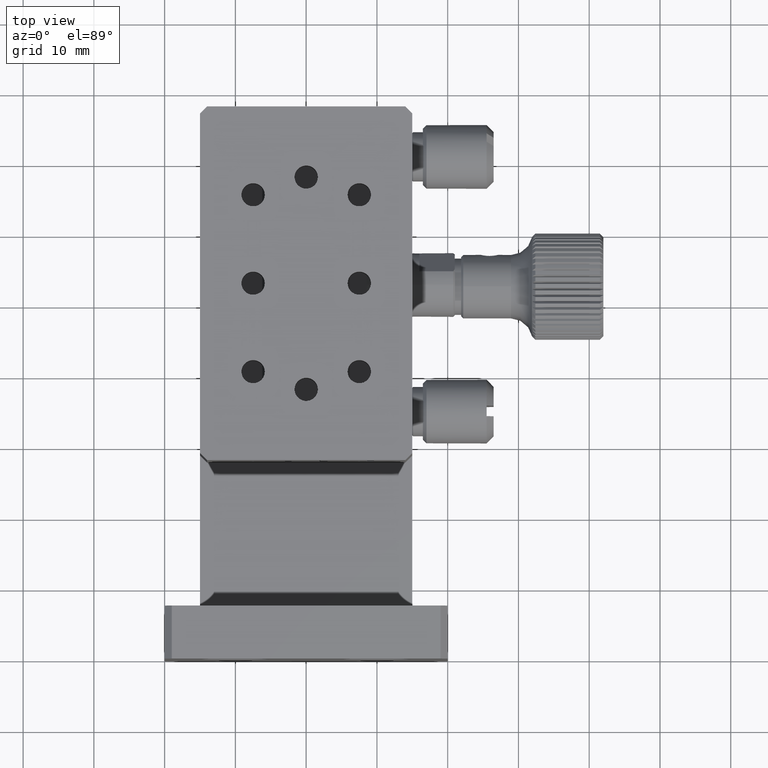
[diagram: clean part render]
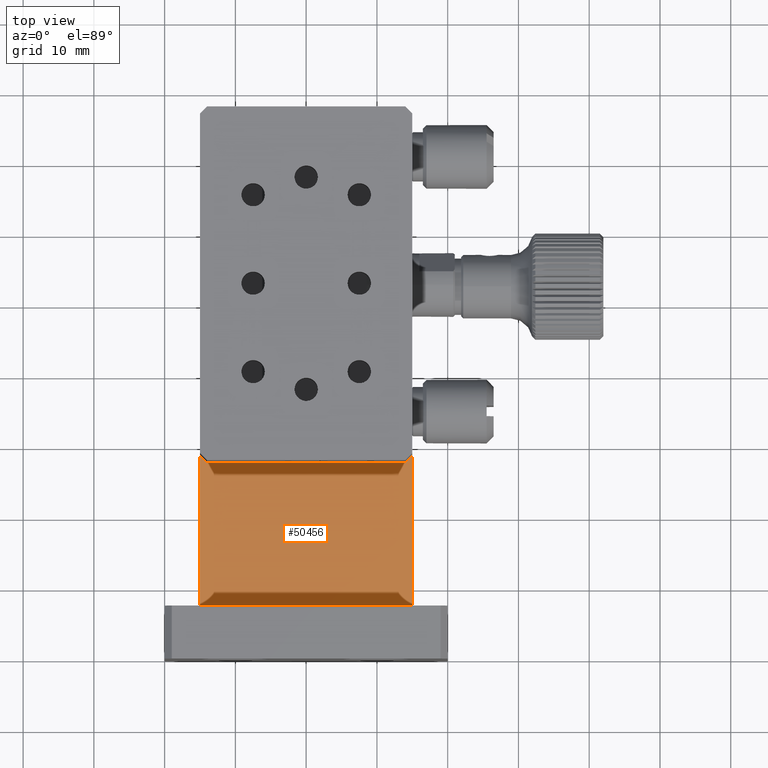
[diagram: same view with one face highlighted and labeled with its STEP entity id]
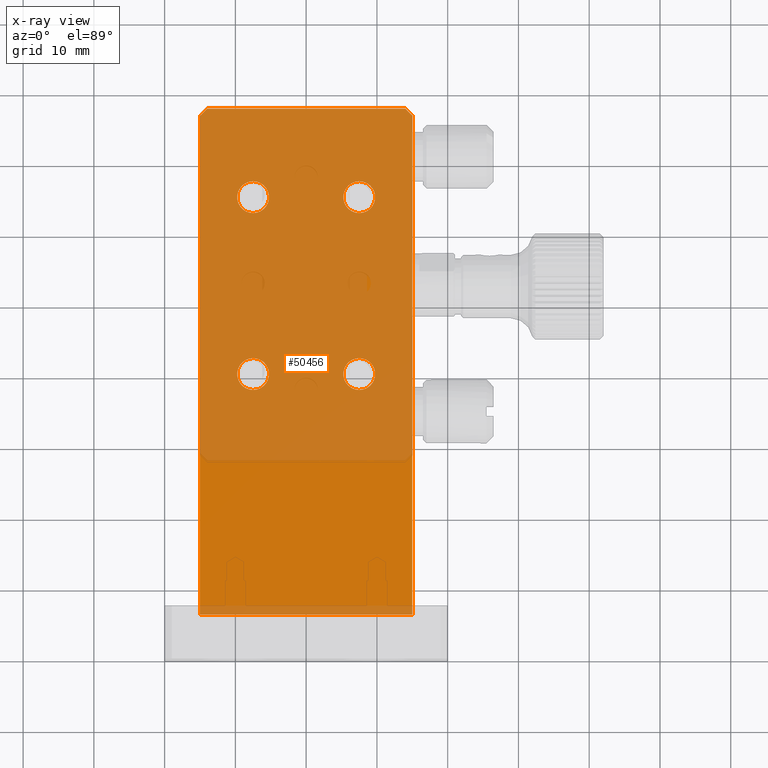
[diagram: x-ray of the same camera — body ghosted, the highlighted face saturated]
A machine part, top view. The second image highlights one B-rep face of the part: STEP entity #50456.
The next image is the same camera in x-ray: the body ghosted, the highlighted face saturated — about 70% of this face is hidden behind the body in this view.
In plain terms, the highlighted planar face has unit normal (0, 0, -1).
Its self-contained STEP definition (entity closure, byte-faithful):
#2829 = CARTESIAN_POINT ( 'NONE',  ( 7.500000000000953015, 40.50000000000097344, -12.50000000000000355 ) ) ;
#2847 = CARTESIAN_POINT ( 'NONE',  ( 7.500000000000714984, 65.50000000000099476, -12.50000000000000000 ) ) ;
#3084 = CIRCLE ( 'NONE', #41317, 2.250000000000001776 ) ;
#3786 = ORIENTED_EDGE ( 'NONE', *, *, #116133, .F. ) ;
#4757 = DIRECTION ( 'NONE',  ( 0.000000000000000000, 1.000000000000000000, 9.842402700577627086E-17 ) ) ;
#5339 = FACE_BOUND ( 'NONE', #45334, .T. ) ;
#5783 = VECTOR ( 'NONE', #32369, 1000.000000000000000 ) ;
#8974 = VERTEX_POINT ( 'NONE', #109256 ) ;
#11827 = CARTESIAN_POINT ( 'NONE',  ( 20.00000000000000000, 6.500000000000005329, -12.50000000000000711 ) ) ;
#12340 = EDGE_CURVE ( 'NONE', #71773, #35782, #80137, .T. ) ;
#15838 = CARTESIAN_POINT ( 'NONE',  ( -7.499999999998784972, 65.50000000000113687, -12.50000000000000000 ) ) ;
#16420 = DIRECTION ( 'NONE',  ( -0.000000000000000000, -8.896017825522084408E-17, 1.000000000000000000 ) ) ;
#16988 = EDGE_LOOP ( 'NONE', ( #26692 ) ) ;
#17219 = VERTEX_POINT ( 'NONE', #53692 ) ;
#17667 = CARTESIAN_POINT ( 'NONE',  ( 15.00000000000000178, 6.500000000000004441, -12.50000000000000711 ) ) ;
#18918 = ORIENTED_EDGE ( 'NONE', *, *, #52790, .F. ) ;
#19783 = ORIENTED_EDGE ( 'NONE', *, *, #93870, .F. ) ;
#19914 = CARTESIAN_POINT ( 'NONE',  ( 20.00000000000000000, 78.00000000000001421, -12.50000000000000000 ) ) ;
#21343 = DIRECTION ( 'NONE',  ( -0.7071067811865474617, -0.7071067811865474617, -0.000000000000000000 ) ) ;
#22102 = PLANE ( 'NONE',  #68631 ) ;
#22710 = DIRECTION ( 'NONE',  ( 0.000000000000000000, 9.842402700577627086E-17, -1.000000000000000000 ) ) ;
#22741 = CIRCLE ( 'NONE', #62848, 2.250000000000001776 ) ;
#23105 = CARTESIAN_POINT ( 'NONE',  ( 7.500000000000953015, 42.75000000000097344, -12.50000000000000355 ) ) ;
#26692 = ORIENTED_EDGE ( 'NONE', *, *, #69063, .F. ) ;
#28604 = DIRECTION ( 'NONE',  ( 0.000000000000000000, 1.000000000000000000, 0.000000000000000000 ) ) ;
#29657 = DIRECTION ( 'NONE',  ( -0.000000000000000000, -1.000000000000000000, -9.842402700577627086E-17 ) ) ;
#29749 = LINE ( 'NONE', #11827, #94692 ) ;
#32369 = DIRECTION ( 'NONE',  ( 0.000000000000000000, 1.000000000000000000, 9.842402700577627086E-17 ) ) ;
#32515 = AXIS2_PLACEMENT_3D ( 'NONE', #90969, #79651, #62873 ) ;
#35782 = VERTEX_POINT ( 'NONE', #63601 ) ;
#36332 = EDGE_LOOP ( 'NONE', ( #49015, #3786, #94662, #94954, #37376, #18918 ) ) ;
#36882 = EDGE_LOOP ( 'NONE', ( #93206 ) ) ;
#37376 = ORIENTED_EDGE ( 'NONE', *, *, #12340, .T. ) ;
#37486 = VERTEX_POINT ( 'NONE', #74560 ) ;
#39458 = FACE_BOUND ( 'NONE', #36882, .T. ) ;
#39938 = EDGE_LOOP ( 'NONE', ( #19783 ) ) ;
#41317 = AXIS2_PLACEMENT_3D ( 'NONE', #15838, #16420, #61276 ) ;
#41697 = DIRECTION ( 'NONE',  ( -1.000000000000000000, 0.000000000000000000, -0.000000000000000000 ) ) ;
#45334 = EDGE_LOOP ( 'NONE', ( #51891 ) ) ;
#45897 = CIRCLE ( 'NONE', #32515, 2.249999999999995115 ) ;
#46482 = LINE ( 'NONE', #76366, #64212 ) ;
#47944 = CARTESIAN_POINT ( 'NONE',  ( -14.99999999999998934, 78.00000000000001421, -12.50000000000000000 ) ) ;
#49015 = ORIENTED_EDGE ( 'NONE', *, *, #70013, .T. ) ;
#50456 = ADVANCED_FACE ( 'NONE', ( #112970, #103994, #39458, #69336, #5339 ), #22102, .F. ) ;
#51891 = ORIENTED_EDGE ( 'NONE', *, *, #66130, .F. ) ;
#52687 = AXIS2_PLACEMENT_3D ( 'NONE', #2847, #75803, #28604 ) ;
#52790 = EDGE_CURVE ( 'NONE', #110190, #35782, #89951, .T. ) ;
#53221 = CARTESIAN_POINT ( 'NONE',  ( 14.99999999999999645, 76.99999999999998579, -12.50000000000000355 ) ) ;
#53576 = CARTESIAN_POINT ( 'NONE',  ( -14.99999999999998579, 6.500000000000003553, -12.50000000000000711 ) ) ;
#53692 = CARTESIAN_POINT ( 'NONE',  ( 7.500000000000714984, 67.75000000000099476, -12.50000000000000000 ) ) ;
#53818 = EDGE_CURVE ( 'NONE', #107496, #107496, #45897, .T. ) ;
#54826 = VECTOR ( 'NONE', #89711, 1000.000000000000114 ) ;
#60739 = VERTEX_POINT ( 'NONE', #23105 ) ;
#61276 = DIRECTION ( 'NONE',  ( 0.000000000000000000, 1.000000000000000000, 0.000000000000000000 ) ) ;
#62233 = CIRCLE ( 'NONE', #52687, 2.250000000000001776 ) ;
#62848 = AXIS2_PLACEMENT_3D ( 'NONE', #2829, #68006, #76398 ) ;
#62873 = DIRECTION ( 'NONE',  ( 0.000000000000000000, 1.000000000000000000, 0.000000000000000000 ) ) ;
#63601 = CARTESIAN_POINT ( 'NONE',  ( 13.99999999999996803, 78.00000000000001421, -12.50000000000000000 ) ) ;
#64212 = VECTOR ( 'NONE', #21343, 1000.000000000000114 ) ;
#66130 = EDGE_CURVE ( 'NONE', #17219, #17219, #62233, .T. ) ;
#66523 = EDGE_CURVE ( 'NONE', #108190, #70850, #29749, .T. ) ;
#68006 = DIRECTION ( 'NONE',  ( -0.000000000000000000, -8.896017825522084408E-17, 1.000000000000000000 ) ) ;
#68631 = AXIS2_PLACEMENT_3D ( 'NONE', #95057, #22710, #4757 ) ;
#69063 = EDGE_CURVE ( 'NONE', #37486, #37486, #3084, .T. ) ;
#69336 = FACE_BOUND ( 'NONE', #16988, .T. ) ;
#70013 = EDGE_CURVE ( 'NONE', #110190, #8974, #46482, .T. ) ;
#70850 = VERTEX_POINT ( 'NONE', #53576 ) ;
#71773 = VERTEX_POINT ( 'NONE', #97102 ) ;
#74560 = CARTESIAN_POINT ( 'NONE',  ( -7.499999999998784972, 67.75000000000113687, -12.50000000000000000 ) ) ;
#75120 = LINE ( 'NONE', #111548, #118055 ) ;
#75803 = DIRECTION ( 'NONE',  ( -0.000000000000000000, -8.896017825522084408E-17, 1.000000000000000000 ) ) ;
#76366 = CARTESIAN_POINT ( 'NONE',  ( -13.99999999999999467, 78.00000000000001421, -12.49999999999999645 ) ) ;
#76398 = DIRECTION ( 'NONE',  ( 0.000000000000000000, 1.000000000000000000, 0.000000000000000000 ) ) ;
#79651 = DIRECTION ( 'NONE',  ( -0.000000000000000000, -8.896017825522084408E-17, 1.000000000000000000 ) ) ;
#80137 = LINE ( 'NONE', #53221, #54826 ) ;
#89025 = EDGE_CURVE ( 'NONE', #71773, #108190, #75120, .T. ) ;
#89711 = DIRECTION ( 'NONE',  ( -0.7071067811865474617, 0.7071067811865474617, -0.000000000000000000 ) ) ;
#89951 = LINE ( 'NONE', #19914, #104965 ) ;
#90969 = CARTESIAN_POINT ( 'NONE',  ( -7.499999999999545253, 40.50000000000112266, -12.50000000000000355 ) ) ;
#93206 = ORIENTED_EDGE ( 'NONE', *, *, #53818, .F. ) ;
#93870 = EDGE_CURVE ( 'NONE', #60739, #60739, #22741, .T. ) ;
#93981 = LINE ( 'NONE', #47944, #5783 ) ;
#94662 = ORIENTED_EDGE ( 'NONE', *, *, #66523, .F. ) ;
#94692 = VECTOR ( 'NONE', #41697, 1000.000000000000000 ) ;
#94954 = ORIENTED_EDGE ( 'NONE', *, *, #89025, .F. ) ;
#95057 = CARTESIAN_POINT ( 'NONE',  ( 20.00000000000000000, 78.00000000000001421, -12.50000000000000000 ) ) ;
#97102 = CARTESIAN_POINT ( 'NONE',  ( 14.99999999999999645, 76.99999999999998579, -12.50000000000000355 ) ) ;
#97959 = CARTESIAN_POINT ( 'NONE',  ( -7.499999999999545253, 42.75000000000112266, -12.50000000000000355 ) ) ;
#98518 = CARTESIAN_POINT ( 'NONE',  ( -13.99999999999999467, 78.00000000000001421, -12.49999999999999822 ) ) ;
#101235 = DIRECTION ( 'NONE',  ( 1.000000000000000000, -0.000000000000000000, 0.000000000000000000 ) ) ;
#103994 = FACE_BOUND ( 'NONE', #39938, .T. ) ;
#104965 = VECTOR ( 'NONE', #101235, 1000.000000000000000 ) ;
#107496 = VERTEX_POINT ( 'NONE', #97959 ) ;
#108190 = VERTEX_POINT ( 'NONE', #17667 ) ;
#109256 = CARTESIAN_POINT ( 'NONE',  ( -14.99999999999999467, 77.00000000000001421, -12.50000000000000000 ) ) ;
#110190 = VERTEX_POINT ( 'NONE', #98518 ) ;
#111548 = CARTESIAN_POINT ( 'NONE',  ( 14.99999999999999645, 78.00000000000001421, -12.50000000000000000 ) ) ;
#112970 = FACE_OUTER_BOUND ( 'NONE', #36332, .T. ) ;
#116133 = EDGE_CURVE ( 'NONE', #70850, #8974, #93981, .T. ) ;
#118055 = VECTOR ( 'NONE', #29657, 1000.000000000000000 ) ;